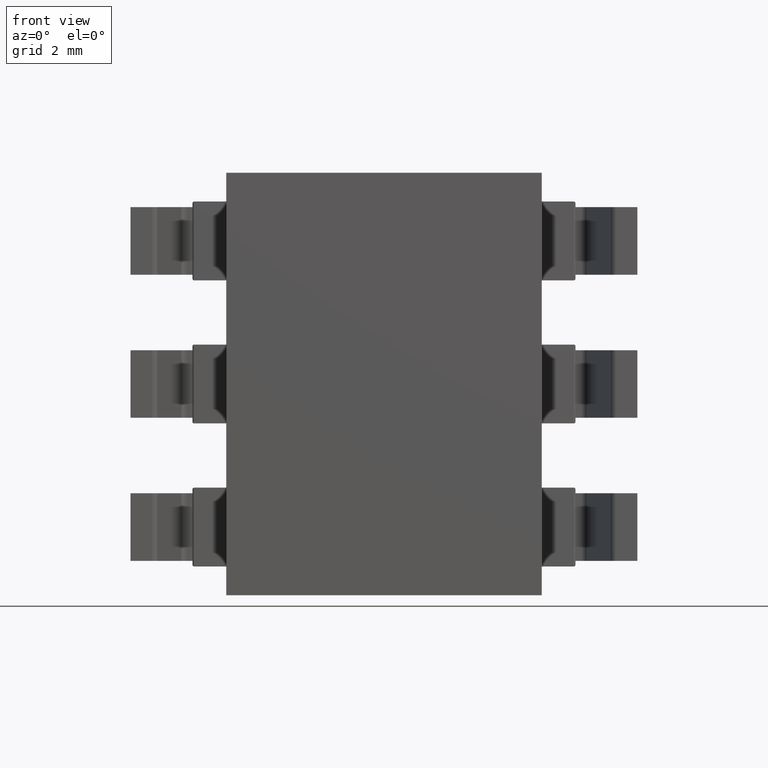
[diagram: clean part render]
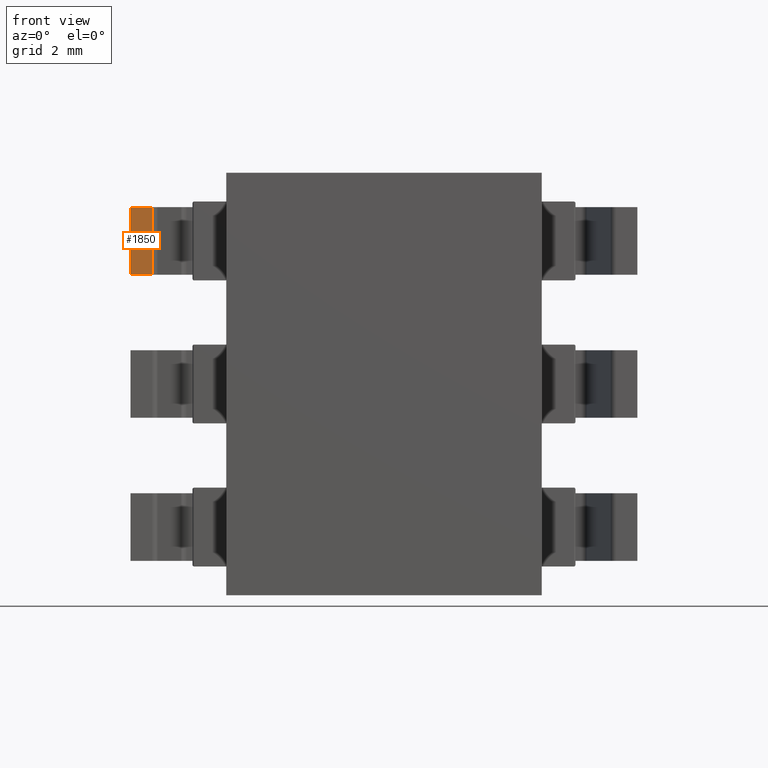
[diagram: same view with one face highlighted and labeled with its STEP entity id]
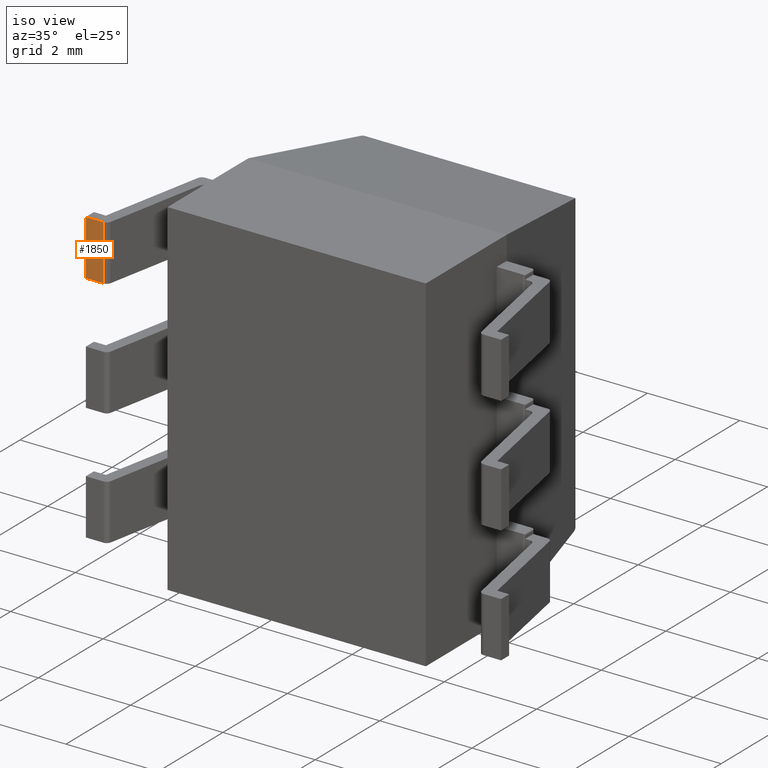
[diagram: same view with one face highlighted and labeled with its STEP entity id]
A machine part, front view. The second image highlights one B-rep face of the part: STEP entity #1850.
A second angle (iso view) of the same face is appended — the face is thin or edge-on in the first view.
In plain terms, the highlighted planar face has unit normal (0, -1, -0).
Its self-contained STEP definition (entity closure, byte-faithful):
#94 = VECTOR ( 'NONE', #5797, 1000.000000000000000 ) ;
#111 = CARTESIAN_POINT ( 'NONE',  ( -1.317078172804284200, -0.1000000000000002600, -0.6099999999999994300 ) ) ;
#1072 = DIRECTION ( 'NONE',  ( -0.0000000000000000000, 0.0000000000000000000, -1.000000000000000000 ) ) ;
#1073 = CARTESIAN_POINT ( 'NONE',  ( -1.317078172804284200, -0.1000000000000002600, -0.6099999999999994300 ) ) ;
#1185 = PLANE ( 'NONE',  #5871 ) ;
#1365 = FACE_OUTER_BOUND ( 'NONE', #7191, .T. ) ;
#1519 = DIRECTION ( 'NONE',  ( -1.000000000000000000, 0.0000000000000000000, 0.0000000000000000000 ) ) ;
#1850 = ADVANCED_FACE ( 'NONE', ( #1365 ), #1185, .T. ) ;
#1995 = ORIENTED_EDGE ( 'NONE', *, *, #8343, .T. ) ;
#2347 = LINE ( 'NONE', #5187, #4859 ) ;
#2419 = VERTEX_POINT ( 'NONE', #2486 ) ;
#2486 = CARTESIAN_POINT ( 'NONE',  ( -1.317078172804284200, -0.1000000000000002600, -1.809999999999999600 ) ) ;
#2777 = DIRECTION ( 'NONE',  ( 0.0000000000000000000, 0.0000000000000000000, 1.000000000000000000 ) ) ;
#3071 = ORIENTED_EDGE ( 'NONE', *, *, #4120, .F. ) ;
#3282 = VERTEX_POINT ( 'NONE', #111 ) ;
#3839 = VECTOR ( 'NONE', #1519, 1000.000000000000000 ) ;
#4120 = EDGE_CURVE ( 'NONE', #2419, #7676, #5639, .T. ) ;
#4350 = VERTEX_POINT ( 'NONE', #5162 ) ;
#4859 = VECTOR ( 'NONE', #5854, 1000.000000000000000 ) ;
#4864 = CARTESIAN_POINT ( 'NONE',  ( -1.317078172804284200, -0.1000000000000002600, -1.809999999999999600 ) ) ;
#5162 = CARTESIAN_POINT ( 'NONE',  ( -1.700000000000000200, -0.1000000000000002600, -0.6099999999999994300 ) ) ;
#5187 = CARTESIAN_POINT ( 'NONE',  ( -1.317078172804284200, -0.1000000000000002600, -1.809999999999999600 ) ) ;
#5386 = LINE ( 'NONE', #1073, #94 ) ;
#5639 = LINE ( 'NONE', #4864, #3839 ) ;
#5797 = DIRECTION ( 'NONE',  ( -1.000000000000000000, 0.0000000000000000000, 0.0000000000000000000 ) ) ;
#5854 = DIRECTION ( 'NONE',  ( 0.0000000000000000000, 0.0000000000000000000, 1.000000000000000000 ) ) ;
#5871 = AXIS2_PLACEMENT_3D ( 'NONE', #7164, #8476, #1072 ) ;
#6187 = EDGE_CURVE ( 'NONE', #2419, #3282, #2347, .T. ) ;
#6724 = VECTOR ( 'NONE', #2777, 1000.000000000000000 ) ;
#7099 = ORIENTED_EDGE ( 'NONE', *, *, #7591, .F. ) ;
#7107 = ORIENTED_EDGE ( 'NONE', *, *, #6187, .T. ) ;
#7164 = CARTESIAN_POINT ( 'NONE',  ( -1.317078172804284200, -0.1000000000000002600, -1.809999999999999600 ) ) ;
#7191 = EDGE_LOOP ( 'NONE', ( #7099, #3071, #7107, #1995 ) ) ;
#7469 = CARTESIAN_POINT ( 'NONE',  ( -1.700000000000000200, -0.1000000000000002600, -1.809999999999999600 ) ) ;
#7545 = LINE ( 'NONE', #7469, #6724 ) ;
#7591 = EDGE_CURVE ( 'NONE', #7676, #4350, #7545, .T. ) ;
#7676 = VERTEX_POINT ( 'NONE', #8028 ) ;
#8028 = CARTESIAN_POINT ( 'NONE',  ( -1.700000000000000200, -0.1000000000000002600, -1.809999999999999600 ) ) ;
#8343 = EDGE_CURVE ( 'NONE', #3282, #4350, #5386, .T. ) ;
#8476 = DIRECTION ( 'NONE',  ( 0.0000000000000000000, -1.000000000000000000, -0.0000000000000000000 ) ) ;